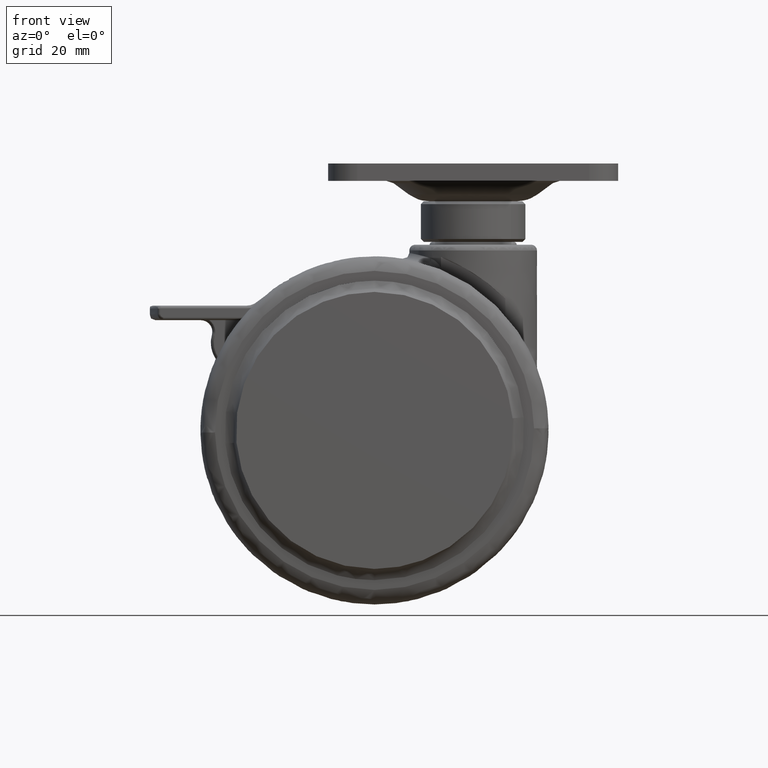
[diagram: clean part render]
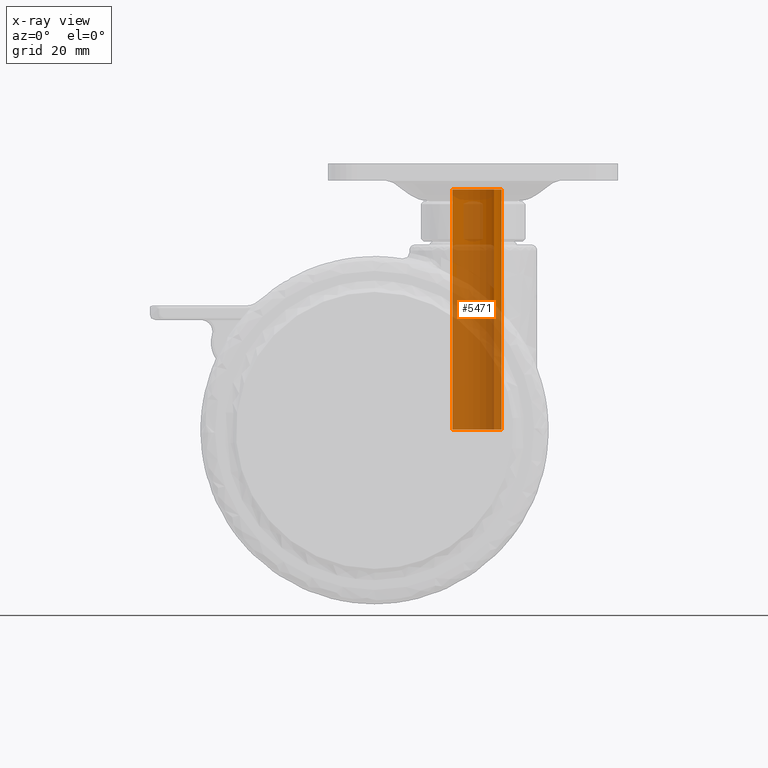
[diagram: x-ray — body ghosted, one internal face saturated and labeled with its STEP entity id]
A machine part, front view, then the same camera in x-ray: the body is ghosted and one INTERNAL B-rep face — a face not visible from any outside direction — is saturated and labeled: STEP entity #5471.
In plain terms, the highlighted face is a freeform B-spline surface patch.
Its self-contained STEP definition (entity closure, byte-faithful):
#5277=CARTESIAN_POINT('',(13.445665716118871,3.372937343069475,0.100000044225456));
#5278=VERTEX_POINT('',#5277);
#5284=CARTESIAN_POINT('',(17.000001075454730,4.899999999999881,0.099999999999973));
#5285=VERTEX_POINT('',#5284);
#5286=CARTESIAN_POINT('',(13.445665716118871,3.372937343069475,0.100000044225456));
#5287=CARTESIAN_POINT('',(13.730738577446481,3.673506433442682,0.100000040678384));
#5288=CARTESIAN_POINT('',(14.232180862518391,4.082741760010547,0.100000034439095));
#5289=CARTESIAN_POINT('',(14.965691958710860,4.472233704698754,0.100000025312247));
#5290=CARTESIAN_POINT('',(15.819525282946410,4.795089864089817,0.100000014688265));
#5291=CARTESIAN_POINT('',(16.502870582935969,4.900255902987440,0.100000006185613));
#5292=CARTESIAN_POINT('',(17.000001075454730,4.899999999999881,0.099999999999973));
#5293=B_SPLINE_CURVE_WITH_KNOTS('',3,(#5286,#5287,#5288,#5289,#5290,#5291,#5292),.UNSPECIFIED.,.F.,.U.,(4,1,1,1,4),(0.000000023382199,1.242737788122640,1.926255716041675,2.485474666785903,3.976760322488516),.UNSPECIFIED.);
#5294=EDGE_CURVE('',#5278,#5285,#5293,.T.);
#5296=CARTESIAN_POINT('',(21.899999999999999,0.0,0.099999999999973));
#5297=VERTEX_POINT('',#5296);
#5298=CARTESIAN_POINT('',(17.000001075454730,4.899999999999881,0.099999999999973));
#5299=CARTESIAN_POINT('',(17.461032192540380,4.900185700554637,0.099999999999973));
#5300=CARTESIAN_POINT('',(18.202547154431670,4.794512516008085,0.099999999999973));
#5301=CARTESIAN_POINT('',(19.291266384628049,4.374605025410092,0.099999999999973));
#5302=CARTESIAN_POINT('',(20.168669350488418,3.796116459246544,0.099999999999973));
#5303=CARTESIAN_POINT('',(20.914187447696769,3.003273880705787,0.099999999999973));
#5304=CARTESIAN_POINT('',(21.389604660495142,2.231660161797801,0.099999999999972));
#5305=CARTESIAN_POINT('',(21.785208958423830,1.242597424349356,0.099999999999974));
#5306=CARTESIAN_POINT('',(21.900247079821479,0.501138226907171,0.099999999999973));
#5307=CARTESIAN_POINT('',(21.899999999999999,0.0,0.099999999999973));
#5308=B_SPLINE_CURVE_WITH_KNOTS('',3,(#5298,#5299,#5300,#5301,#5302,#5303,#5304,#5305,#5306,#5307),.UNSPECIFIED.,.F.,.U.,(4,1,1,1,1,1,1,4),(0.000000086198847,1.383036538170114,2.224905398323646,3.487707550850531,4.509929706584706,5.472044594047223,6.193640216595877,7.696949689944033),.UNSPECIFIED.);
#5309=EDGE_CURVE('',#5285,#5297,#5308,.T.);
#5311=CARTESIAN_POINT('',(20.554334283881129,-3.372937343069476,0.100000044225454));
#5312=VERTEX_POINT('',#5311);
#5313=CARTESIAN_POINT('',(21.899999999999999,0.0,0.099999999999973));
#5314=CARTESIAN_POINT('',(21.900278602233669,-0.523178695428419,0.100000006859819));
#5315=CARTESIAN_POINT('',(21.752751494956151,-1.433684746758741,0.100000018798246));
#5316=CARTESIAN_POINT('',(21.221943202996648,-2.564062080971177,0.100000033619595));
#5317=CARTESIAN_POINT('',(20.781094471972970,-3.134028660830357,0.100000041092917));
#5318=CARTESIAN_POINT('',(20.554334283881129,-3.372937343069476,0.100000044225454));
#5319=B_SPLINE_CURVE_WITH_KNOTS('',3,(#5313,#5314,#5315,#5316,#5317,#5318),.UNSPECIFIED.,.F.,.U.,(4,1,1,4),(0.000000022387821,1.569467366186356,2.732014565308297,3.720191091517307),.UNSPECIFIED.);
#5320=EDGE_CURVE('',#5297,#5312,#5319,.T.);
#5397=CARTESIAN_POINT('',(13.445665582039791,3.372937420899394,42.534999999999997));
#5398=CARTESIAN_POINT('',(16.818603002939184,6.927271838859602,42.534999999999997));
#5399=CARTESIAN_POINT('',(20.372937420899390,3.554334417960209,42.534999999999997));
#5400=CARTESIAN_POINT('',(23.927271838859603,0.181396997060815,42.534999999999997));
#5401=CARTESIAN_POINT('',(20.554334417960209,-3.372937420899394,42.534999999999997));
#5402=CARTESIAN_POINT('',(13.445665582039791,3.372937420899394,-0.960875000000023));
#5403=CARTESIAN_POINT('',(16.818603002939184,6.927271838859602,-0.960875000000023));
#5404=CARTESIAN_POINT('',(20.372937420899390,3.554334417960209,-0.960875000000023));
#5405=CARTESIAN_POINT('',(23.927271838859603,0.181396997060815,-0.960875000000023));
#5406=CARTESIAN_POINT('',(20.554334417960209,-3.372937420899394,-0.960875000000023));
#5414=(BOUNDED_SURFACE()B_SPLINE_SURFACE(2,1,((#5397,#5402),(#5398,#5403),(#5399,#5404),(#5400,#5405),(#5401,#5406)),.UNSPECIFIED.,.F.,.F.,.U.)B_SPLINE_SURFACE_WITH_KNOTS((3,2,3),(2,2),(0.0,8.118585822512662,16.237171645025320),(0.0,43.495875000000026),.UNSPECIFIED.)GEOMETRIC_REPRESENTATION_ITEM()RATIONAL_B_SPLINE_SURFACE(((1.0,1.0),(0.707106781186548,0.707106781186548),(1.0,1.0),(0.707106781186548,0.707106781186548),(1.0,1.0)))REPRESENTATION_ITEM('')SURFACE());
#5415=ORIENTED_EDGE('',*,*,#5294,.F.);
#5416=CARTESIAN_POINT('',(13.445665825539120,3.372937287440478,41.500000000000000));
#5417=VERTEX_POINT('',#5416);
#5418=CARTESIAN_POINT('',(13.445665825539120,3.372937287440478,41.500000000000000));
#5419=CARTESIAN_POINT('',(13.445665826138020,3.372937288071586,0.100000000000283));
#5420=QUASI_UNIFORM_CURVE('',1,(#5418,#5419),.UNSPECIFIED.,.F.,.U.);
#5421=EDGE_CURVE('',#5417,#5278,#5420,.T.);
#5422=ORIENTED_EDGE('',*,*,#5421,.F.);
#5423=CARTESIAN_POINT('',(17.000001075454730,4.899999999999881,41.500000000000000));
#5424=VERTEX_POINT('',#5423);
#5425=CARTESIAN_POINT('',(13.445665825539120,3.372937287440478,41.500000000000000));
#5426=CARTESIAN_POINT('',(13.730741851660230,3.673493919177254,41.500000000000000));
#5427=CARTESIAN_POINT('',(14.313043290844870,4.148783612384161,41.500000000000007));
#5428=CARTESIAN_POINT('',(15.191346071787120,4.580085458218957,41.500000000000043));
#5429=CARTESIAN_POINT('',(16.067978827726041,4.837196361053214,41.499999999999901));
#5430=CARTESIAN_POINT('',(16.647888547249639,4.900067233621943,41.500000000000043));
#5431=CARTESIAN_POINT('',(17.000001075454730,4.899999999999881,41.500000000000000));
#5432=B_SPLINE_CURVE_WITH_KNOTS('',3,(#5425,#5426,#5427,#5428,#5429,#5430,#5431),.UNSPECIFIED.,.F.,.U.,(4,1,1,1,4),(0.000000023385778,1.242737762274950,2.236926933765552,2.920432644472143,3.976760239773003),.UNSPECIFIED.);
#5433=EDGE_CURVE('',#5417,#5424,#5432,.T.);
#5434=ORIENTED_EDGE('',*,*,#5433,.T.);
#5435=CARTESIAN_POINT('',(21.899999999999999,0.0,41.500000000000000));
#5436=VERTEX_POINT('',#5435);
#5437=CARTESIAN_POINT('',(17.000001075454730,4.899999999999881,41.500000000000000));
#5438=CARTESIAN_POINT('',(17.461032284720130,4.900185797362297,41.499999999999908));
#5439=CARTESIAN_POINT('',(18.202545893730829,4.794511612371002,41.500000000000227));
#5440=CARTESIAN_POINT('',(19.291273297527571,4.374609616828630,41.500000000000078));
#5441=CARTESIAN_POINT('',(20.134896247404519,3.818355777919875,41.499999999999787));
#5442=CARTESIAN_POINT('',(20.889210352401339,3.035686061712582,41.500000000000163));
#5443=CARTESIAN_POINT('',(21.374702570347321,2.269004986725614,41.499999999999567));
#5444=CARTESIAN_POINT('',(21.785192629395059,1.242589395592833,41.500000000000412));
#5445=CARTESIAN_POINT('',(21.900252532173131,0.501140897515023,41.499999999999872));
#5446=CARTESIAN_POINT('',(21.899999999999999,0.0,41.500000000000000));
#5447=B_SPLINE_CURVE_WITH_KNOTS('',3,(#5437,#5438,#5439,#5440,#5441,#5442,#5443,#5444,#5445,#5446),.UNSPECIFIED.,.F.,.U.,(4,1,1,1,1,1,1,4),(0.000000086198847,1.383036538170114,2.224905398323646,3.487707550850531,4.389641892632929,5.472044594047223,6.193640216595877,7.696949689944033),.UNSPECIFIED.);
#5448=EDGE_CURVE('',#5424,#5436,#5447,.T.);
#5449=ORIENTED_EDGE('',*,*,#5448,.T.);
#5450=CARTESIAN_POINT('',(20.554334174460880,-3.372937287440480,41.500000000000000));
#5451=VERTEX_POINT('',#5450);
#5452=CARTESIAN_POINT('',(21.899999999999999,0.0,41.500000000000000));
#5453=CARTESIAN_POINT('',(21.900025672966741,-0.290639595717209,41.499999999999943));
#5454=CARTESIAN_POINT('',(21.846411161480319,-0.891287766712664,41.500000000000213));
#5455=CARTESIAN_POINT('',(21.599938741246341,-1.772235144374464,41.499999999999659));
#5456=CARTESIAN_POINT('',(21.174254796608881,-2.625667552745925,41.500000000000490));
#5457=CARTESIAN_POINT('',(20.781101378065010,-3.134030981900487,41.499999999999730));
#5458=CARTESIAN_POINT('',(20.554334174460880,-3.372937287440480,41.500000000000000));
#5459=B_SPLINE_CURVE_WITH_KNOTS('',3,(#5452,#5453,#5454,#5455,#5456,#5457,#5458),.UNSPECIFIED.,.F.,.U.,(4,1,1,1,4),(0.000000022386420,0.871919028473136,1.801981494283141,2.732014558189881,3.720191081819740),.UNSPECIFIED.);
#5460=EDGE_CURVE('',#5436,#5451,#5459,.T.);
#5461=ORIENTED_EDGE('',*,*,#5460,.T.);
#5462=CARTESIAN_POINT('',(20.554334174460880,-3.372937287440480,41.500000000000000));
#5463=CARTESIAN_POINT('',(20.554334173861982,-3.372937288071589,0.100000000000280));
#5464=QUASI_UNIFORM_CURVE('',1,(#5462,#5463),.UNSPECIFIED.,.F.,.U.);
#5465=EDGE_CURVE('',#5451,#5312,#5464,.T.);
#5466=ORIENTED_EDGE('',*,*,#5465,.T.);
#5467=ORIENTED_EDGE('',*,*,#5320,.F.);
#5468=ORIENTED_EDGE('',*,*,#5309,.F.);
#5469=EDGE_LOOP('',(#5415,#5422,#5434,#5449,#5461,#5466,#5467,#5468));
#5470=FACE_OUTER_BOUND('',#5469,.T.);
#5471=ADVANCED_FACE('',(#5470),#5414,.T.);